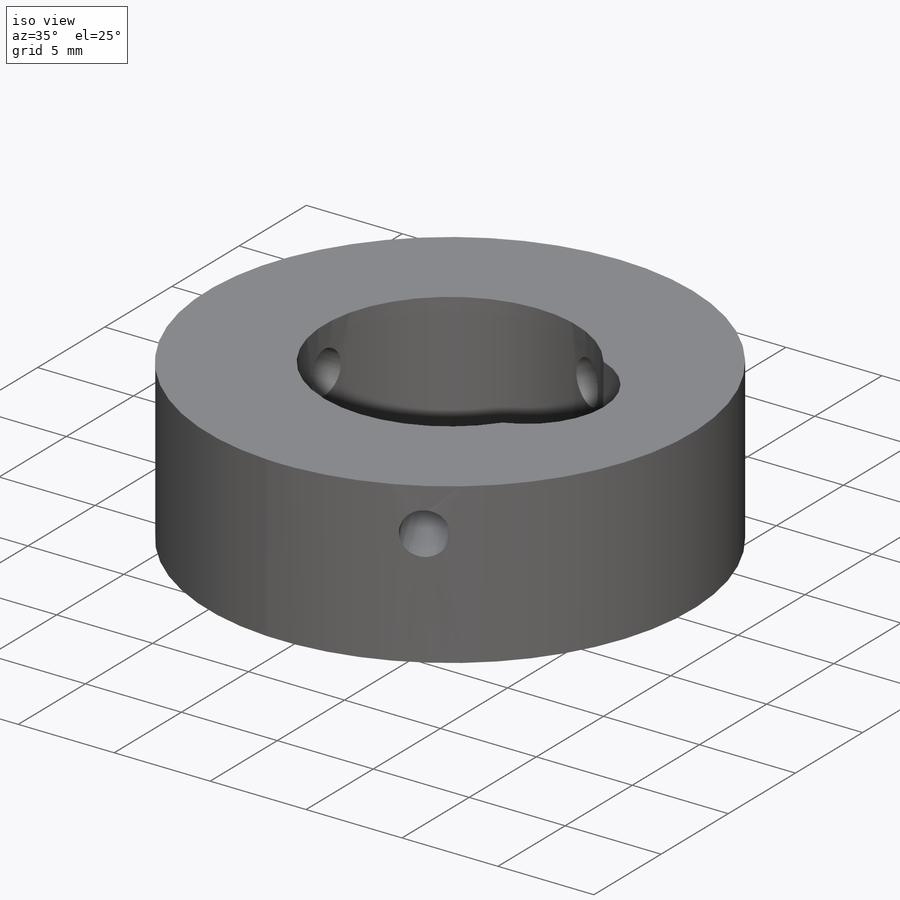
[diagram: iso view]
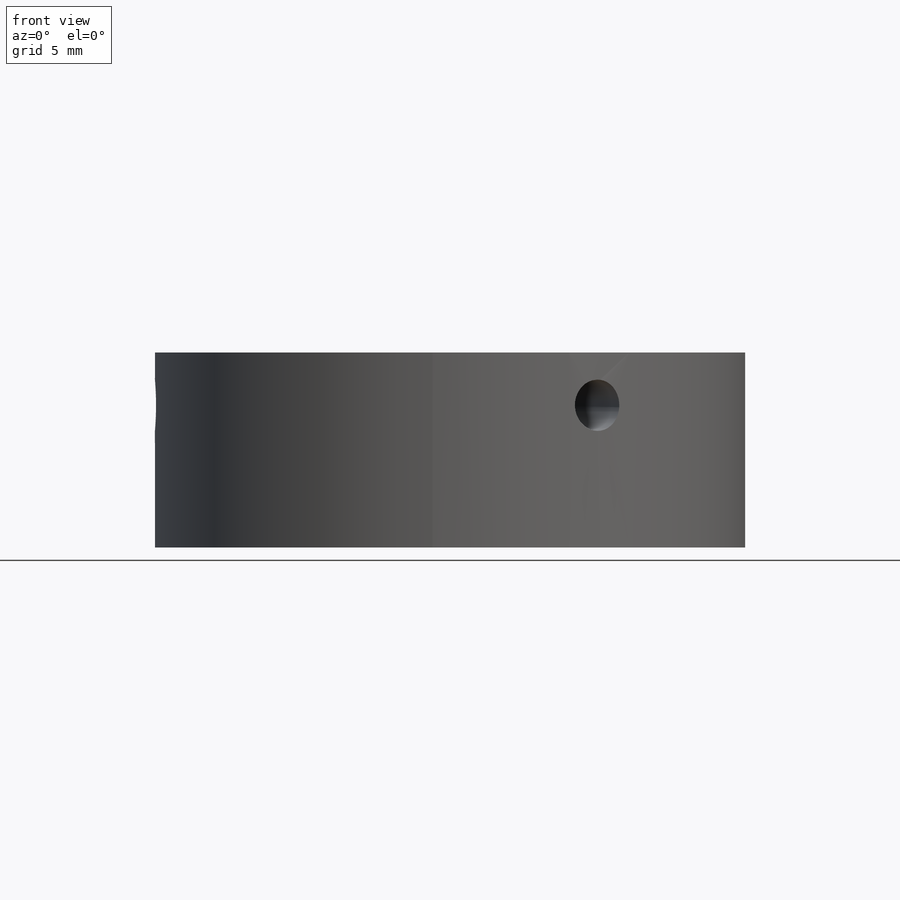
[diagram: front view]
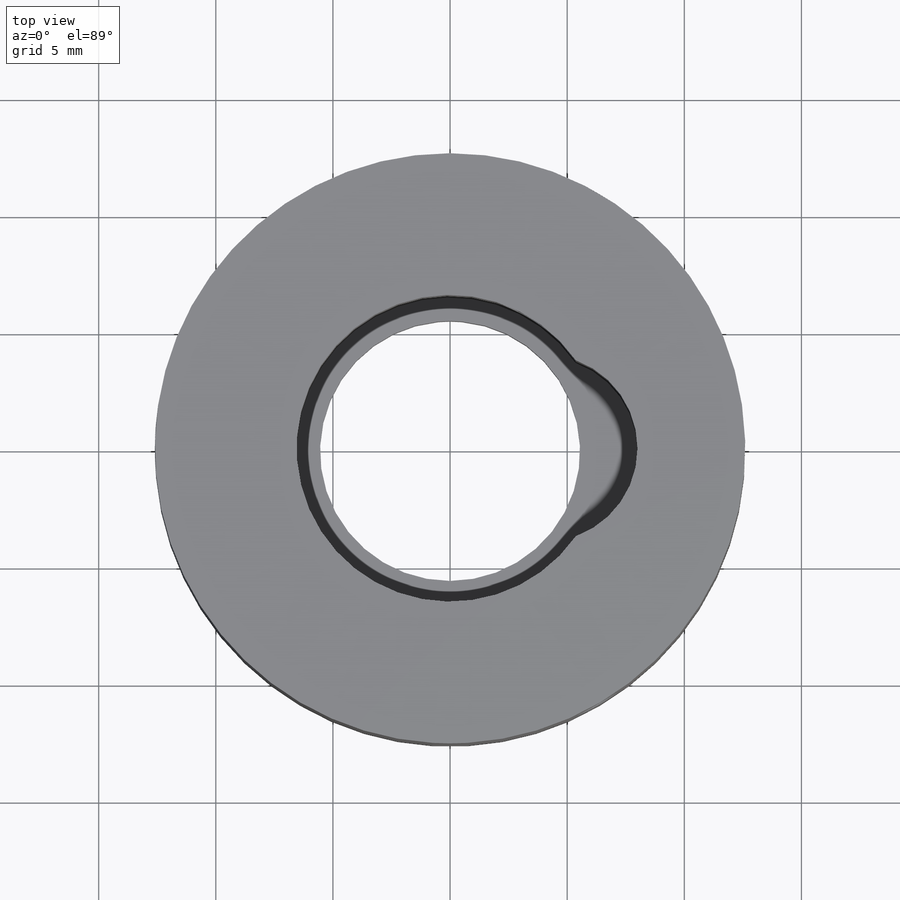
[diagram: top view]
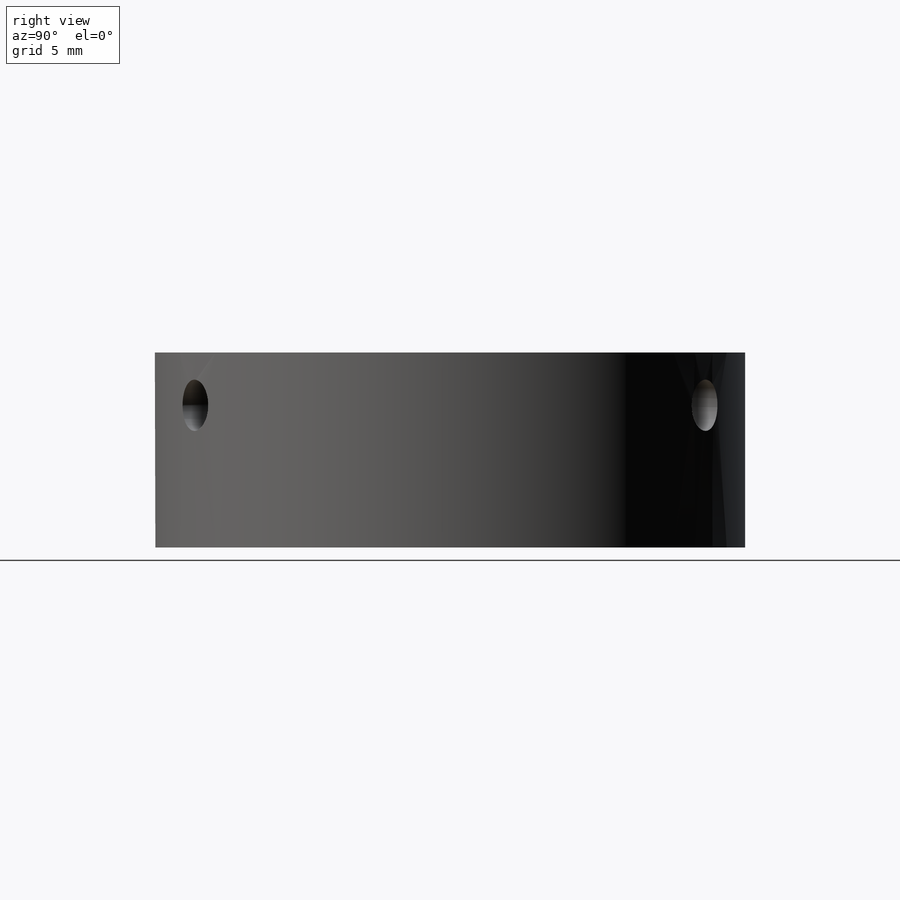
[diagram: right view]
SOLIDWORKS PART (.sldprt)
format: sldprt  version: not decoded by parser v0  size: 182,272 bytes
history: native  units: mm
features: sketch x4, extrude x2, cut_extrude x2, material x1, pattern_circular x1 (+11 scaffold rows collapsed)
feature tree (21):
  scaffold x11  (default folders/planes/origin — collapsed)
  material  "Material <not specified>"
  sketch  "Sketch1"  dims[D1=13.1mm D2=25.2mm]
  extrude  "Boss-Extrude1"  Depth=6.5mm
  sketch  "Sketch2"  dims[c1.D1=2.19mm c2.D1=2.19mm c2.D2=4.25mm]
  cut_extrude  "Cut-Extrude1"  [1 undecoded]
  sketch  "Sketch4"  dims[D1=1.0mm]
  sketch  "Sketch3"  dims[D2=4.0mm D1=4.0mm]
  extrude  "Boss-Extrude2"  Depth=1.82mm
  cut_extrude  "Cut-Extrude2"  [1 undecoded]
  pattern_circular  "CirPattern1"  Count=3 Angle=120deg
decode coverage: 7 of 9 modeling features carry decoded parameters
note: 2 parameter values undecoded
note: suppression state not decoded; provenance and decode notes live in map.json
